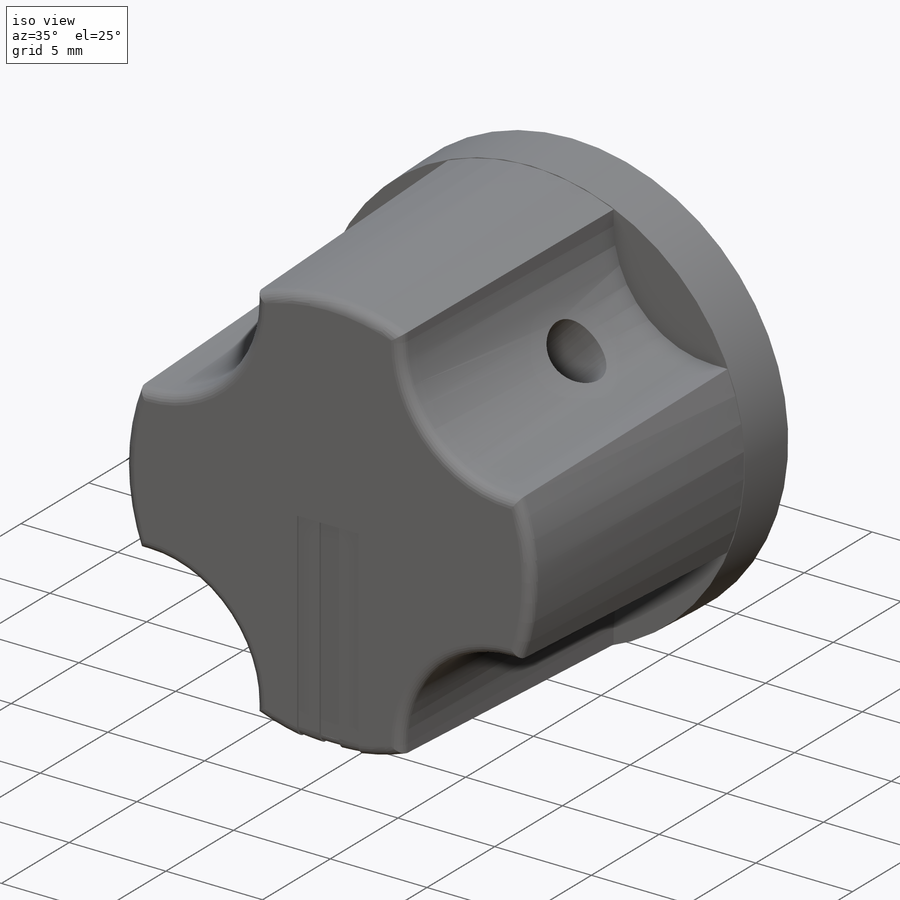
[diagram: iso view]
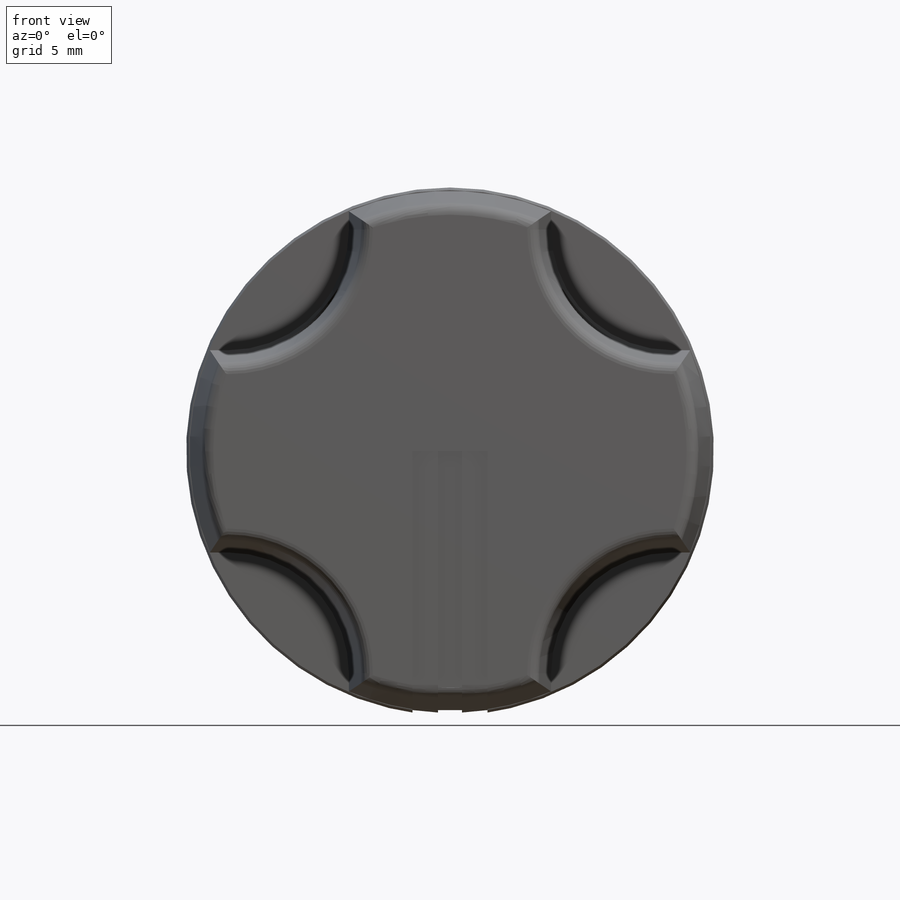
[diagram: front view]
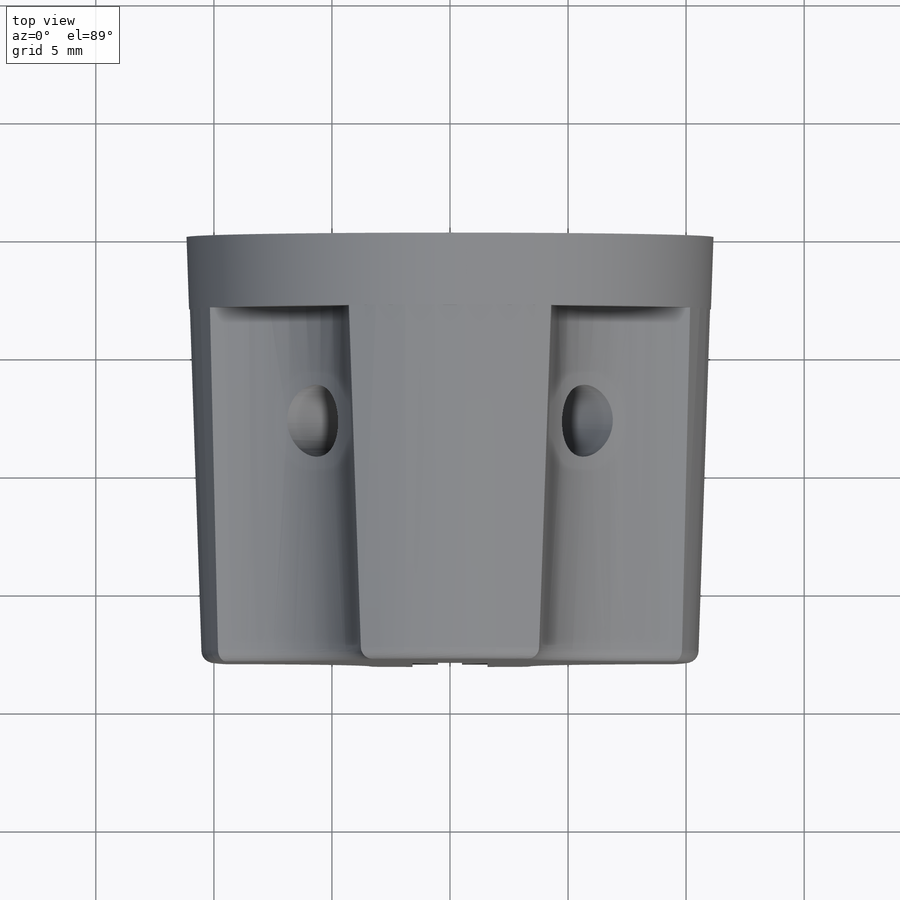
[diagram: top view]
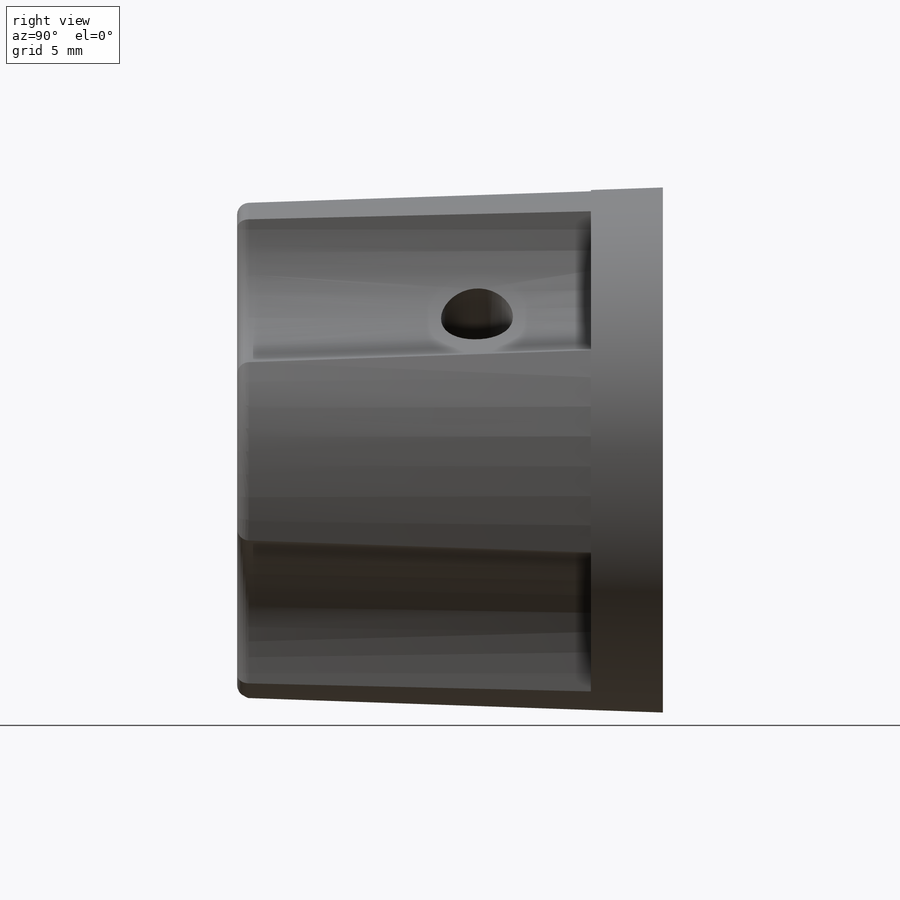
[diagram: right view]
SOLIDWORKS PART (.sldprt)
format: sldprt  version: not decoded by parser v0  size: 563,712 bytes
history: native  units: mm
features: sketch x14, cut_extrude x7, plane x6, extrude x2, material x1, fillet x1, mirror x1 (+11 scaffold rows collapsed)
feature tree (43):
  scaffold x11  (default folders/planes/origin — collapsed)
  material  "PMMA"
  sketch  "Skica2"  dims[D1=22.352mm]
  extrude  "Přidat vysunutím2"  Depth=3.048mm
  sketch  "Skica38"  dims[D1=6.35mm]
  cut_extrude  "Odebrat vysunutím35"  Depth=12.7mm
  sketch  "Skica39"  dims[D1=8.636mm]
  cut_extrude  "Odebrat vysunutím36"  Depth=2.032mm
  plane  "Rovina3"  Offset=2.032mm
  sketch  "Skica41"  dims[c1.D5=5.08mm c1.D1=~4.569022mm c2.D1=120.0deg c2.D2=~7.128552mm c3.D2=120.0deg c3.D1=~11.069561mm c4.D1=45.0deg c5.D1=4.318mm c5.D2=4.318mm c5.D3=4.318mm c5.D4=4.318mm]
  extrude  "Přidat vysunutím3"  Depth=16.002mm
  fillet  "Zaoblit3"  Radius=0.508mm
  plane  "Rovina5"
  sketch  "Skica45"  dims[D1=6.35mm D2=2.7432mm]
  cut_extrude  "Odebrat vysunutím39"  Depth=12.7mm
  sketch  "Skica46"  dims[D1=1.5875mm D2=1.5875mm]
  cut_extrude  "Odebrat vysunutím40"  Depth=0.1016mm
  sketch  "Skica47"  dims[D1=0.508mm D2=0.508mm]
  cut_extrude  "Odebrat vysunutím41"  Depth=0.1016mm
  plane  "Rovina6"
  sketch  "Skica52"
  plane  "Rovina13"
  sketch  "Skica54"
  plane  "Rovina14"
  sketch  "Skica55"  dims[c1.D1=22.3384mm c1.D2=22.3384mm c1.D3=22.1352mm c2.D2=0.1016mm c2.D3=0.1016mm c2.D4=0.508mm]
  cut_extrude  "Odebrat vysunutím42"  [1 undecoded]
  sketch  "Skica56"  dims[D1=0.0mm]
  sketch  "Skica57"
  sketch  "Skica58"
  plane  "Rovina15"
  sketch  "Skica59"  dims[D1=7.874mm]
  cut_extrude  "Odebrat vysunutím43"  [1 undecoded]
  mirror  "Zrcadlit1"
decode coverage: 18 of 25 modeling features carry decoded parameters
note: ~ marks probable driven/reference dimensions
note: 2 parameter values undecoded
note: suppression state not decoded; provenance and decode notes live in map.json
